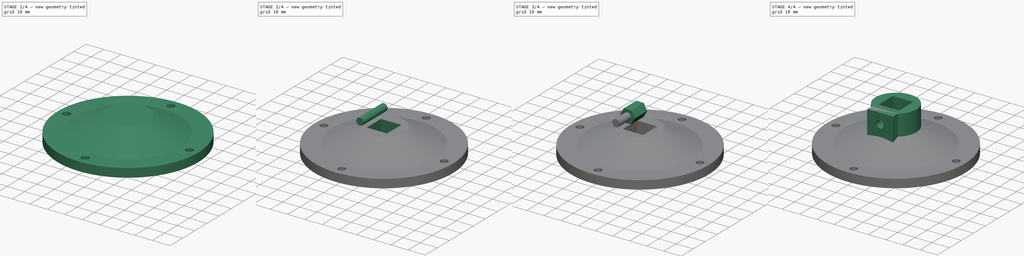
[diagram: build sequence overview — one tinted view per stage of 4, left to right]
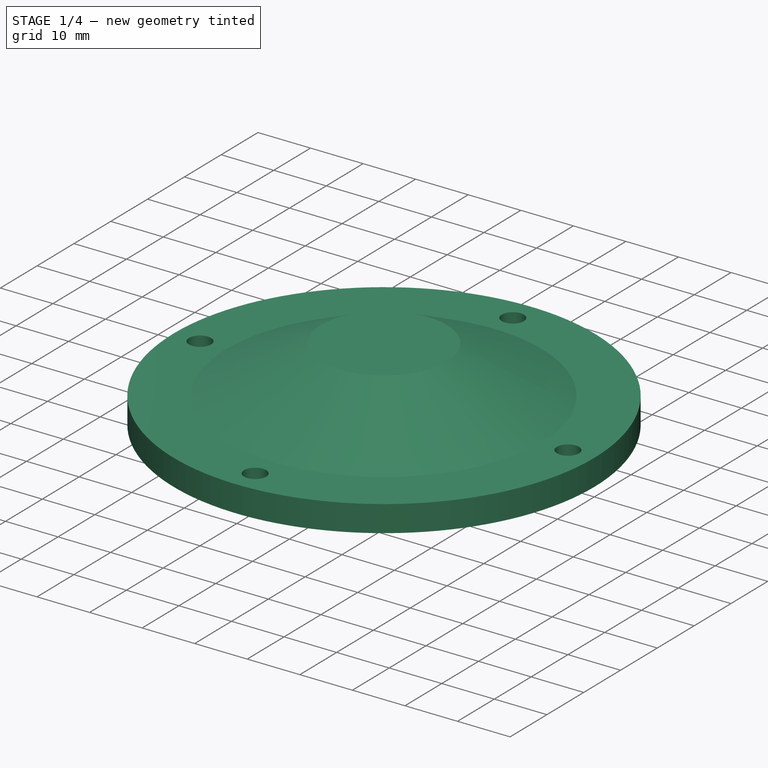
[diagram: stage 1 of 4 — iso view after this stage's code; geometry added in this stage tinted green]
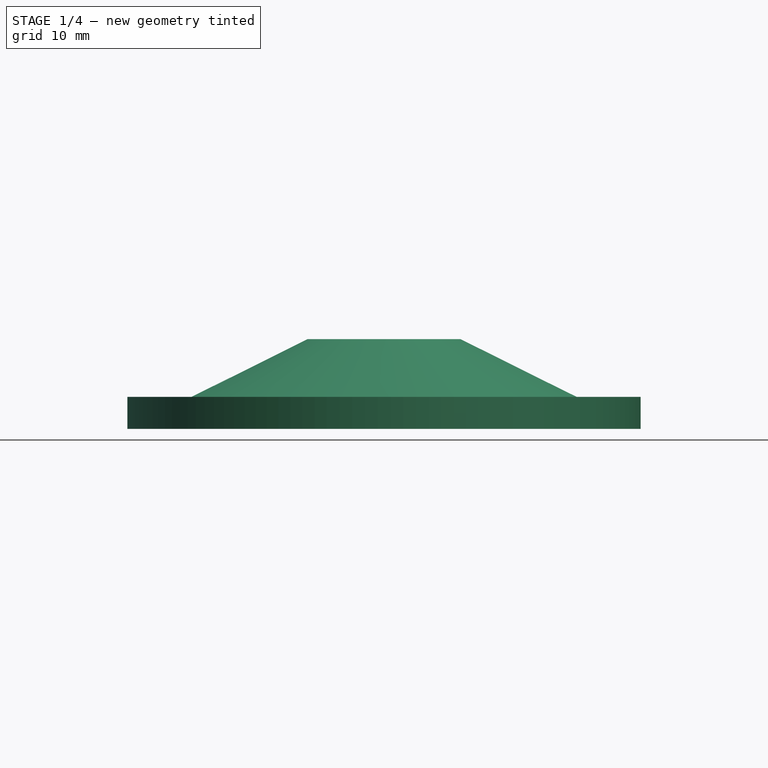
[diagram: stage 1 of 4 — front view after this stage's code; geometry added in this stage tinted green]
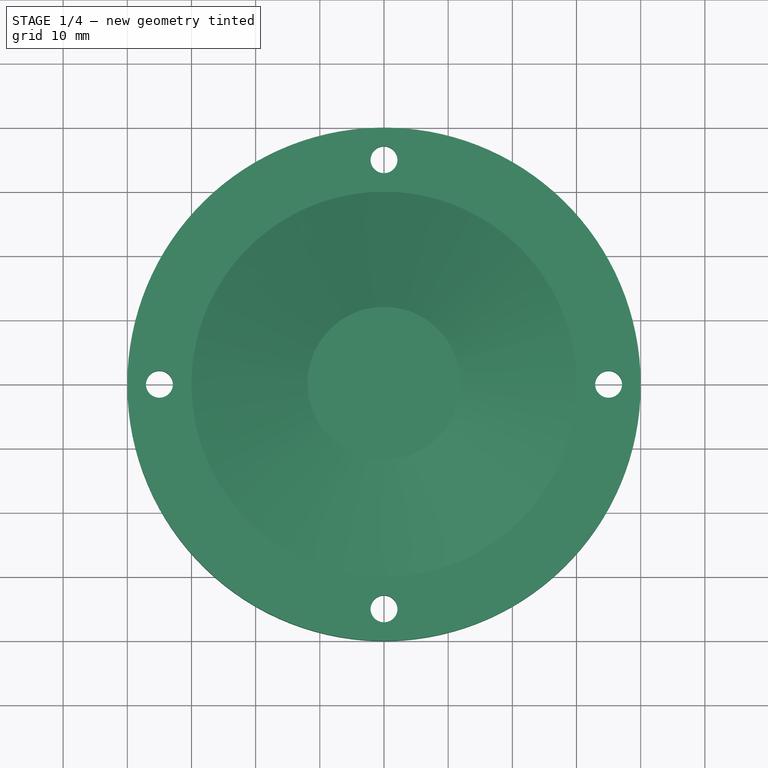
[diagram: stage 1 of 4 — top view after this stage's code; geometry added in this stage tinted green]
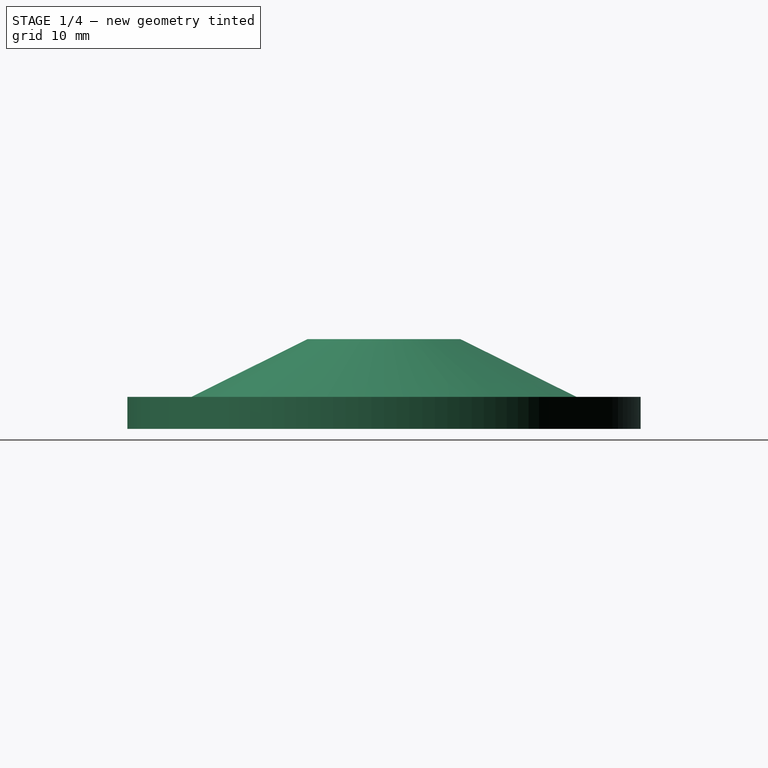
[diagram: stage 1 of 4 — right view after this stage's code; geometry added in this stage tinted green]
FCSTD DOCUMENT  (FreeCAD 0.15R4671 (Git))
Label: mobile
License: All rights reserved
LicenseURL: http://fr.wikipedia.org/wiki/<copyright redacted>
objects: Sketcher::SketchObject×5, PartDesign::Pad×5, Part::MultiFuse×3, Part::Cut×2, Part::Cone×1
note: 21 computed .brp shape members not serialized (recipe doc carries the construction recipe); baked Part::Feature solids carry a one-line shape summary decoded from their .brp

FEATURE [Part::Cone] Cone  label="Cône"
  Angle = 360
  Height = 9
  Placement = pos=(0,0,5) rot=(0,0,1;0rad)
  Radius1 = 30
  Radius2 = 11.9
FEATURE [Sketcher::SketchObject] Sketch001
  sketch-geometry (5):
    g0: Circle CenterX=0 CenterY=0 CenterZ=0 NormalX=0 NormalY=0 NormalZ=1 Radius=40
    g1: Circle CenterX=0 CenterY=35 CenterZ=0 NormalX=0 NormalY=0 NormalZ=1 Radius=2.1
    g2: Circle CenterX=-35 CenterY=0 CenterZ=0 NormalX=0 NormalY=0 NormalZ=1 Radius=2.1
    g3: Circle CenterX=35 CenterY=0 CenterZ=0 NormalX=0 NormalY=0 NormalZ=1 Radius=2.1
    g4: Circle CenterX=0 CenterY=-35 CenterZ=0 NormalX=0 NormalY=0 NormalZ=1 Radius=2.1
  constraints (14):
    c: Coincident(g0,g-1)
    c: Radius(g0) = 40
    c: PointOnObject(g1,g-2)
    c: PointOnObject(g2,g-1)
    c: PointOnObject(g3,g-1)
    c: PointOnObject(g4,g-2)
    c: Radius(g1) = 2.1
    c: Equal(g3,g1)
    c: Equal(g1,g4)
    c: Equal(g4,g2)
    c: Symmetric(g1,g4,g-1)
    c: Symmetric(g3,g2,g-1)
    c: DistanceX(g-1,g2) = -35
    c: DistanceY(g-1,g1) = 35
FEATURE [PartDesign::Pad] Pad001
  Length = 5
  Length2 = 100
  Sketch = -> Sketch001
  Type = 0
FEATURE [Part::MultiFuse] Fusion001
  Shapes = -> [Cone,Pad001]
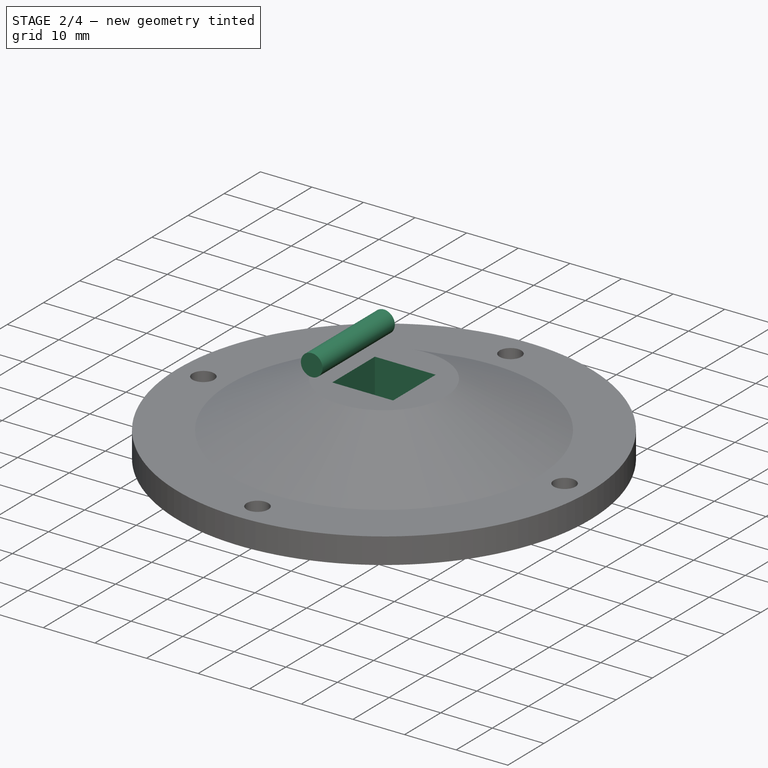
[diagram: stage 2 of 4 — iso view after this stage's code; geometry added in this stage tinted green]
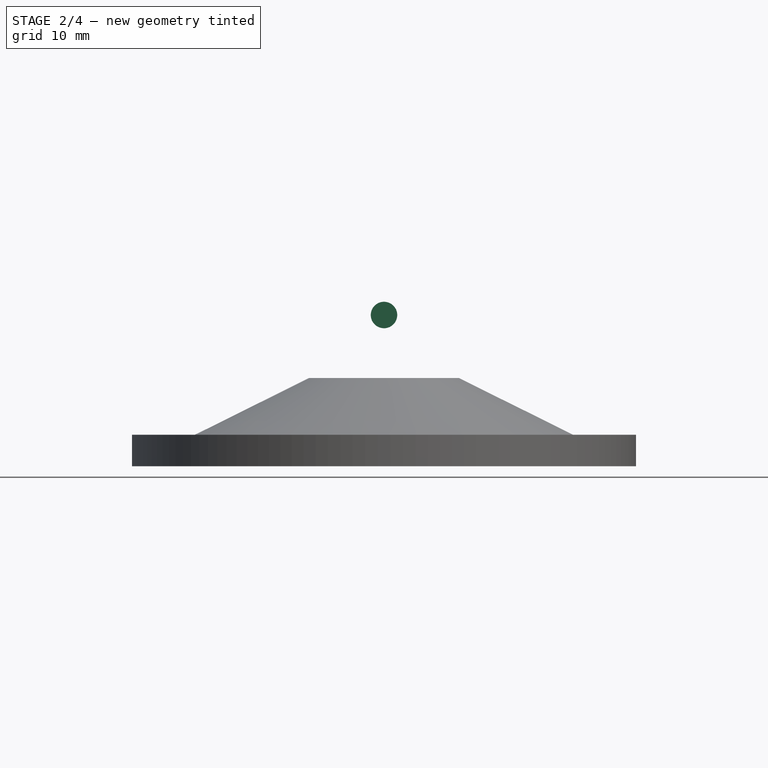
[diagram: stage 2 of 4 — front view after this stage's code; geometry added in this stage tinted green]
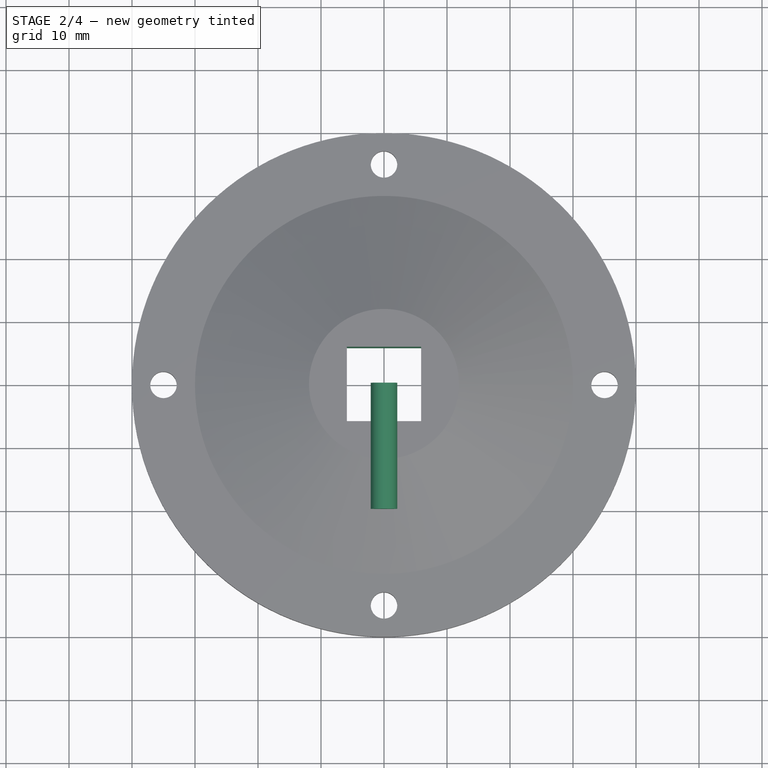
[diagram: stage 2 of 4 — top view after this stage's code; geometry added in this stage tinted green]
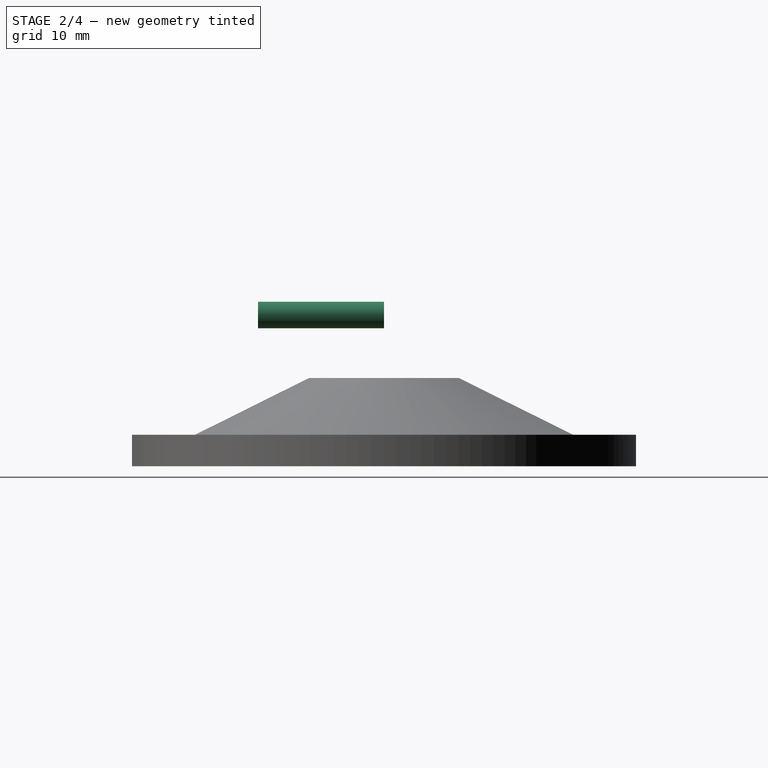
[diagram: stage 2 of 4 — right view after this stage's code; geometry added in this stage tinted green]
FEATURE [Sketcher::SketchObject] Sketch005
  Placement = pos=(0,0,0) rot=(1,0,0;1.5708rad)
  sketch-geometry (1):
    g0: Circle CenterX=0 CenterY=24 CenterZ=0 NormalX=0 NormalY=0 NormalZ=1 Radius=2.1
  constraints (3):
    c: PointOnObject(g0,g-2)
    c: Radius(g0) = 2.1
    c: DistanceY(g0) = 24
FEATURE [PartDesign::Pad] Pad005
  Length = 20
  Length2 = 100
  Placement = pos=(0,0,0) rot=(1,0,0;1.5708rad)
  Sketch = -> Sketch005
  Type = 0
FEATURE [Sketcher::SketchObject] Sketch006
  sketch-geometry (4):
    g0: LineSegment StartX=-5.9 StartY=5.9 StartZ=0 EndX=5.9 EndY=5.9 EndZ=0
    g1: LineSegment StartX=5.9 StartY=5.9 StartZ=0 EndX=5.9 EndY=-5.9 EndZ=0
    g2: LineSegment StartX=5.9 StartY=-5.9 StartZ=0 EndX=-5.9 EndY=-5.9 EndZ=0
    g3: LineSegment StartX=-5.9 StartY=-5.9 StartZ=0 EndX=-5.9 EndY=5.9 EndZ=0
  constraints (11):
    c: Coincident(g0,g1)
    c: Coincident(g1,g2)
    c: Coincident(g2,g3)
    c: Coincident(g3,g0)
    c: Horizontal(g0)
    c: Horizontal(g2)
    c: Vertical(g1)
    c: Vertical(g3)
    c: DistanceX(g0) = 11.8
    c: Equal(g1,g0)
    c: Symmetric(g0,g2,g-1)
FEATURE [PartDesign::Pad] Pad006
  Length = 30
  Length2 = 100
  Sketch = -> Sketch006
  Type = 0
FEATURE [Part::Cut] Cut001  label="vis"
  Base = -> Fusion001
  Tool = -> Pad006
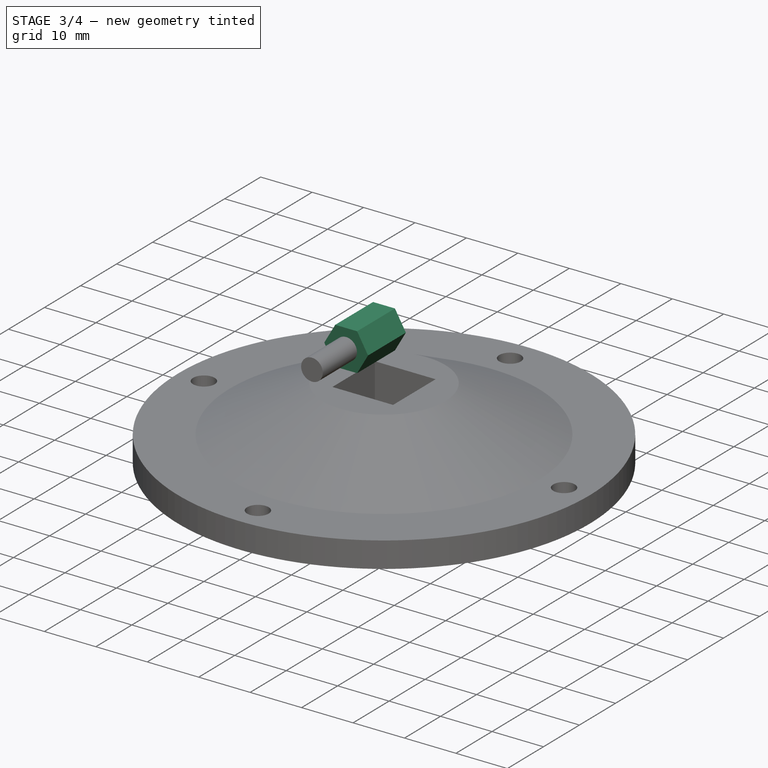
[diagram: stage 3 of 4 — iso view after this stage's code; geometry added in this stage tinted green]
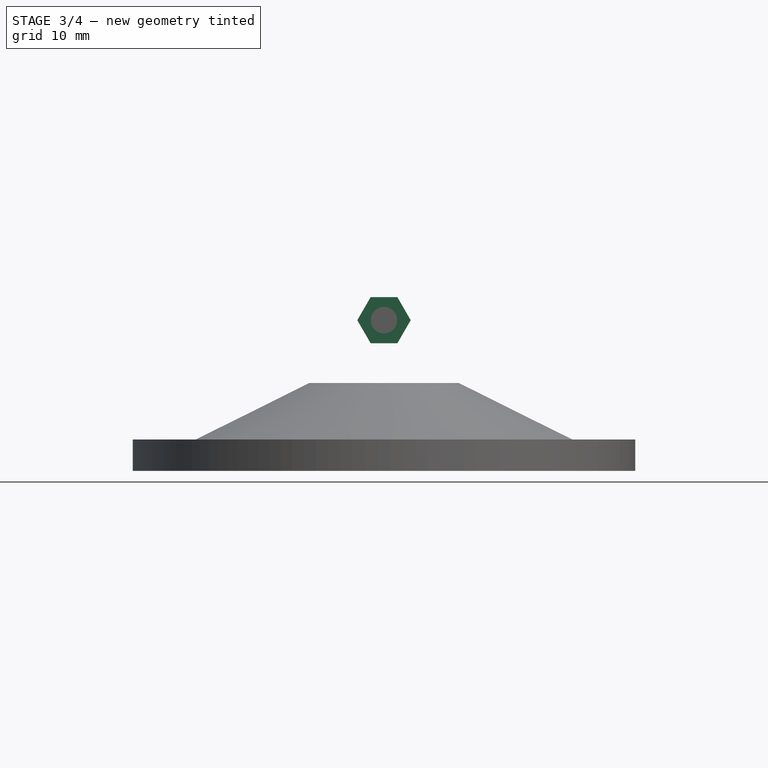
[diagram: stage 3 of 4 — front view after this stage's code; geometry added in this stage tinted green]
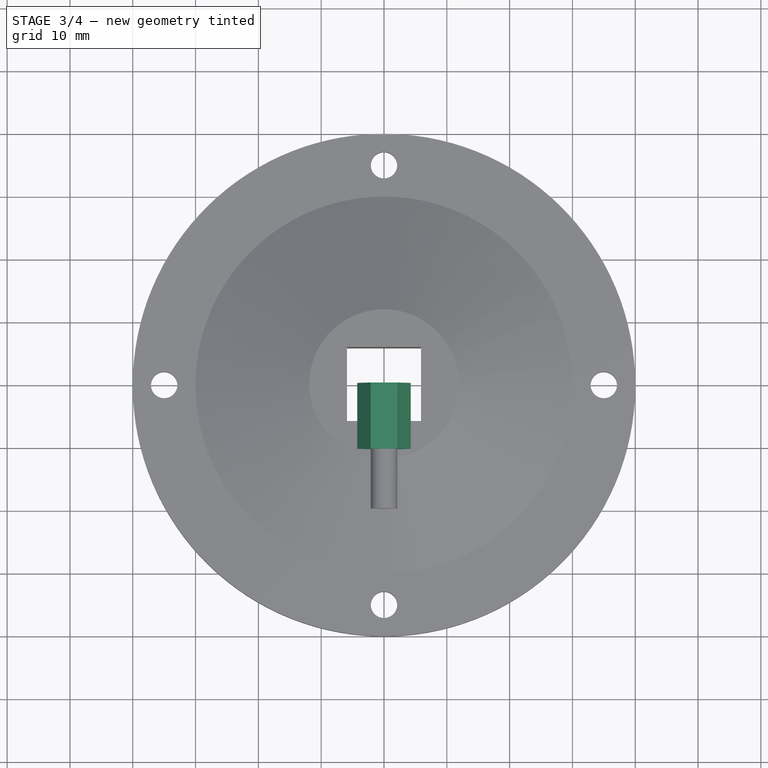
[diagram: stage 3 of 4 — top view after this stage's code; geometry added in this stage tinted green]
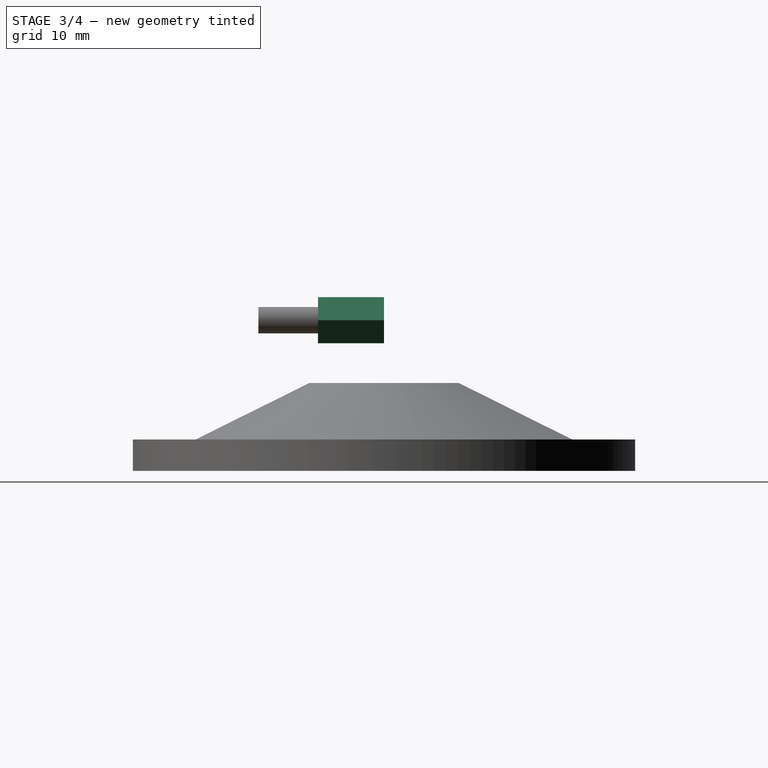
[diagram: stage 3 of 4 — right view after this stage's code; geometry added in this stage tinted green]
FEATURE [Sketcher::SketchObject] Sketch004
  Placement = pos=(0,0,0) rot=(1,0,0;1.5708rad)
  sketch-geometry (7):
    g0: LineSegment StartX=4.25 StartY=24 StartZ=0 EndX=2.125 EndY=27.6806 EndZ=0
    g1: LineSegment StartX=2.125 StartY=27.6806 StartZ=0 EndX=-2.125 EndY=27.6806 EndZ=0
    g2: LineSegment StartX=-2.125 StartY=27.6806 StartZ=0 EndX=-4.25 EndY=24 EndZ=0
    g3: LineSegment StartX=-4.25 StartY=24 StartZ=0 EndX=-2.125 EndY=20.3194 EndZ=0
    g4: LineSegment StartX=-2.125 StartY=20.3194 StartZ=0 EndX=2.125 EndY=20.3194 EndZ=0
    g5: LineSegment StartX=2.125 StartY=20.3194 StartZ=0 EndX=4.25 EndY=24 EndZ=0
    g6: Circle [constr] CenterX=0 CenterY=24 CenterZ=0 NormalX=0 NormalY=0 NormalZ=1 Radius=4.25
  constraints (18):
    c: Coincident(g0,g1)
    c: Coincident(g1,g2)
    c: Coincident(g2,g3)
    c: Coincident(g3,g4)
    c: Coincident(g4,g5)
    c: Coincident(g5,g0)
    c: Equal(g0, g1-g5) x5
    c: PointOnObject(g0,g6)
    c: PointOnObject(g1,g6)
    c: PointOnObject(g2,g6)
    c: PointOnObject(g3,g6)
    c: PointOnObject(g4,g6)
    c: PointOnObject(g5,g6)
    c: PointOnObject(g3,g-2)
    c: Horizontal(g1)
    c: Distance(g6,g0) = 4.25
    c: PointOnObject(g6,g-2)
    c: DistanceY(g-1,g6) = 24
FEATURE [PartDesign::Pad] Pad004
  Length = 10.5
  Length2 = 100
  Placement = pos=(0,0,0) rot=(1,0,0;1.5708rad)
  Sketch = -> Sketch004
  Type = 0
FEATURE [Part::MultiFuse] Fusion  label="screw_hole"
  Shapes = -> [Pad005,Pad004]
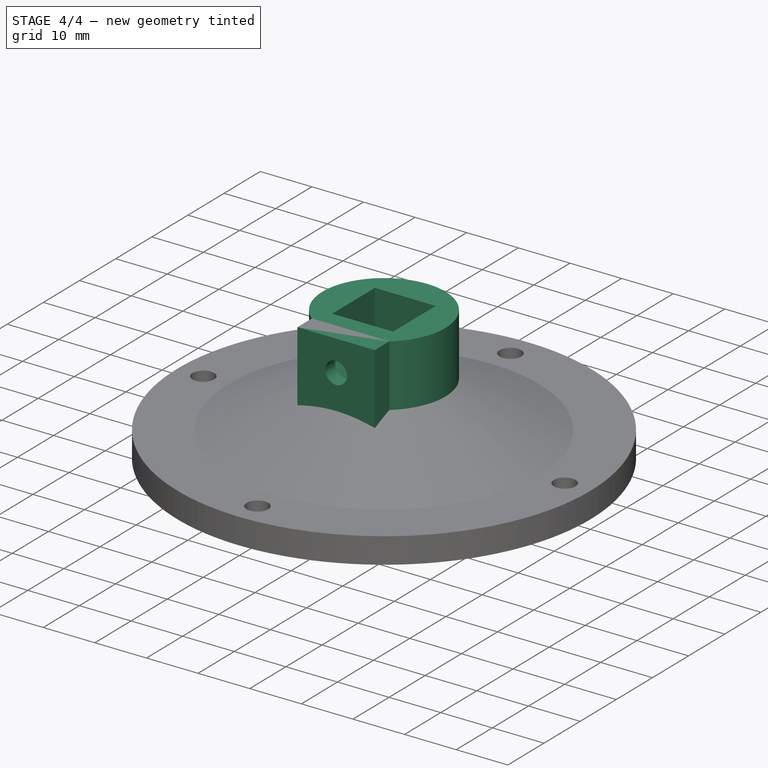
[diagram: stage 4 of 4 — iso view after this stage's code; geometry added in this stage tinted green]
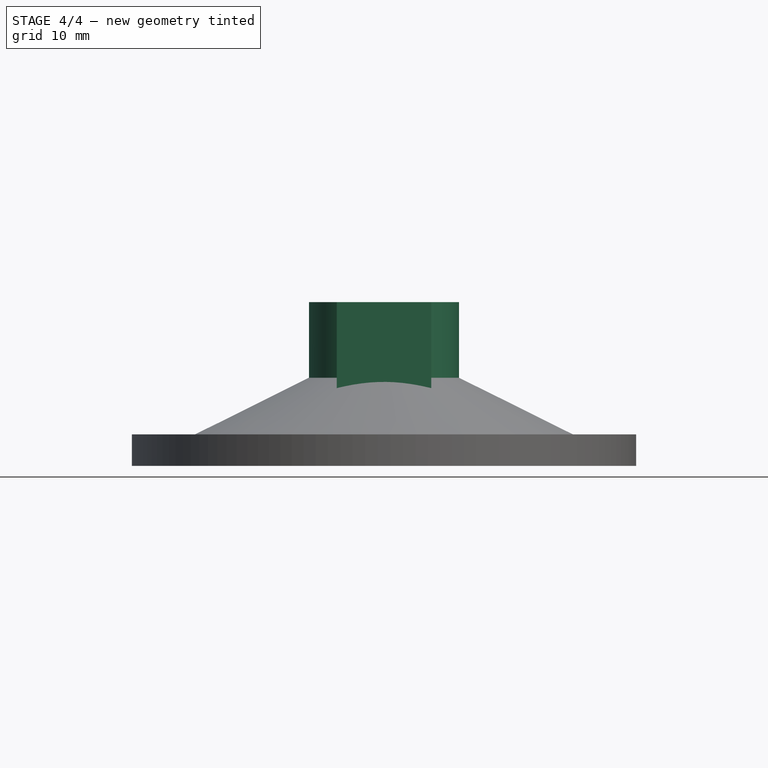
[diagram: stage 4 of 4 — front view after this stage's code; geometry added in this stage tinted green]
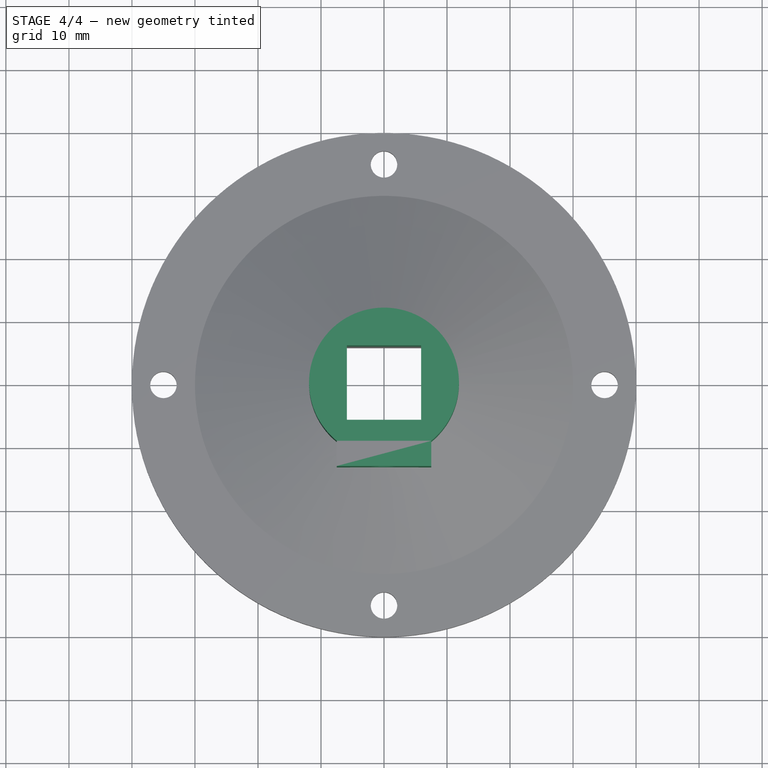
[diagram: stage 4 of 4 — top view after this stage's code; geometry added in this stage tinted green]
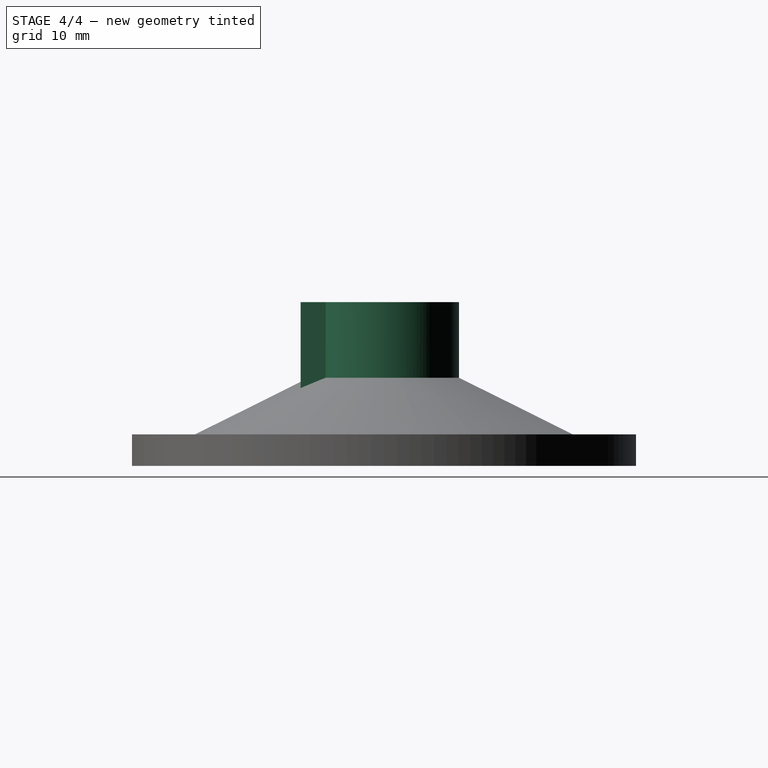
[diagram: stage 4 of 4 — right view after this stage's code; geometry added in this stage tinted green]
FEATURE [Sketcher::SketchObject] Sketch
  Placement = pos=(0,0,15) rot=(0,0,1;0rad)
  sketch-geometry (8):
    g0: LineSegment StartX=-5.9 StartY=5.9 StartZ=0 EndX=5.9 EndY=5.9 EndZ=0
    g1: LineSegment StartX=5.9 StartY=5.9 StartZ=0 EndX=5.9 EndY=-5.9 EndZ=0
    g2: LineSegment StartX=5.9 StartY=-5.9 StartZ=0 EndX=-5.9 EndY=-5.9 EndZ=0
    g3: LineSegment StartX=-5.9 StartY=-5.9 StartZ=0 EndX=-5.9 EndY=5.9 EndZ=0
    g4: ArcOfCircle CenterX=0 CenterY=0 CenterZ=0 NormalX=0 NormalY=0 NormalZ=1 Radius=11.9 StartAngle=5.39427 EndAngle=10.3137
    g5: LineSegment StartX=-7.5 StartY=-9.23905 StartZ=0 EndX=-7.5 EndY=-13.239 EndZ=0
    g6: LineSegment StartX=-7.5 StartY=-13.239 StartZ=0 EndX=7.5 EndY=-13.239 EndZ=0
    g7: LineSegment StartX=7.5 StartY=-13.239 StartZ=0 EndX=7.5 EndY=-9.23905 EndZ=0
  constraints (23):
    c: Coincident(g0,g1)
    c: Coincident(g1,g2)
    c: Coincident(g2,g3)
    c: Coincident(g3,g0)
    c: Horizontal(g0)
    c: Horizontal(g2)
    c: Vertical(g1)
    c: Vertical(g3)
    c: Equal(g1,g0)
    c: Symmetric(g0,g2,g-1)
    c: DistanceX(g0) = 11.8
    c: Coincident(g4,g-1)
    c: Distance(g-1,g4) = 11.9
    c: DistanceX(g4,g4) = -15
    c: Coincident(g4,g5)
    c: Coincident(g5,g6)
    c: Coincident(g6,g7)
    c: Coincident(g7,g4)
    c: Horizontal(g6)
    c: Equal(g7,g5)
    c: Vertical(g7)
    c: Vertical(g5)
    c: DistanceY(g7) = 4
FEATURE [PartDesign::Pad] Pad
  Length = 15
  Length2 = 100
  Placement = pos=(0,0,15) rot=(0,0,1;0rad)
  Sketch = -> Sketch
  Type = 0
FEATURE [Part::Cut] Cut  label="serrage"
  Base = -> Pad
  Placement = pos=(0,0,-4) rot=(0,0,1;0rad)
  Tool = -> Fusion
FEATURE [Part::MultiFuse] Fusion002  label="mobile"
  Shapes = -> [Cut,Cut001]
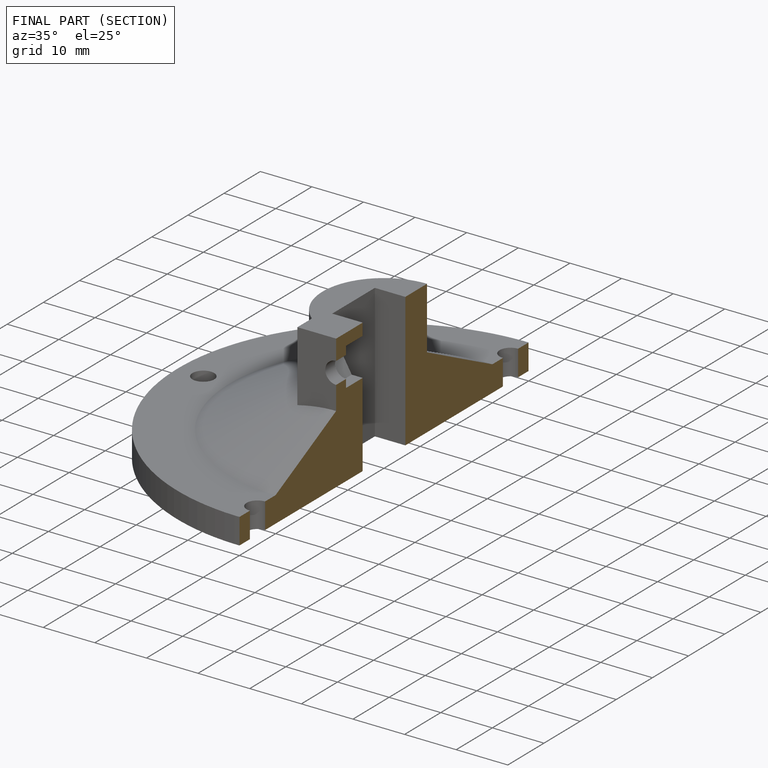
[diagram: finished part — half-section view (interior)]
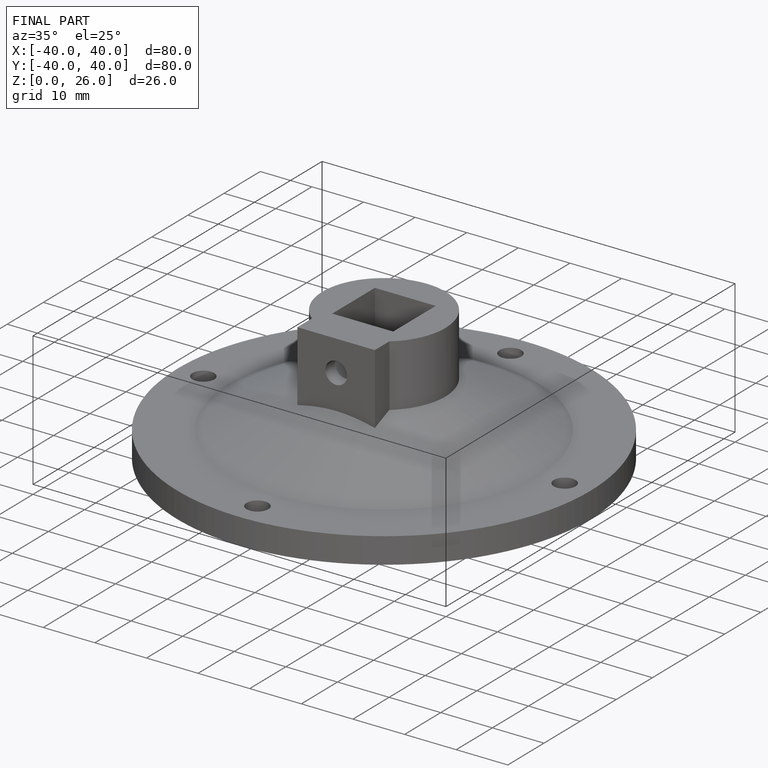
[diagram: finished part — iso view with bounding-box wireframe]
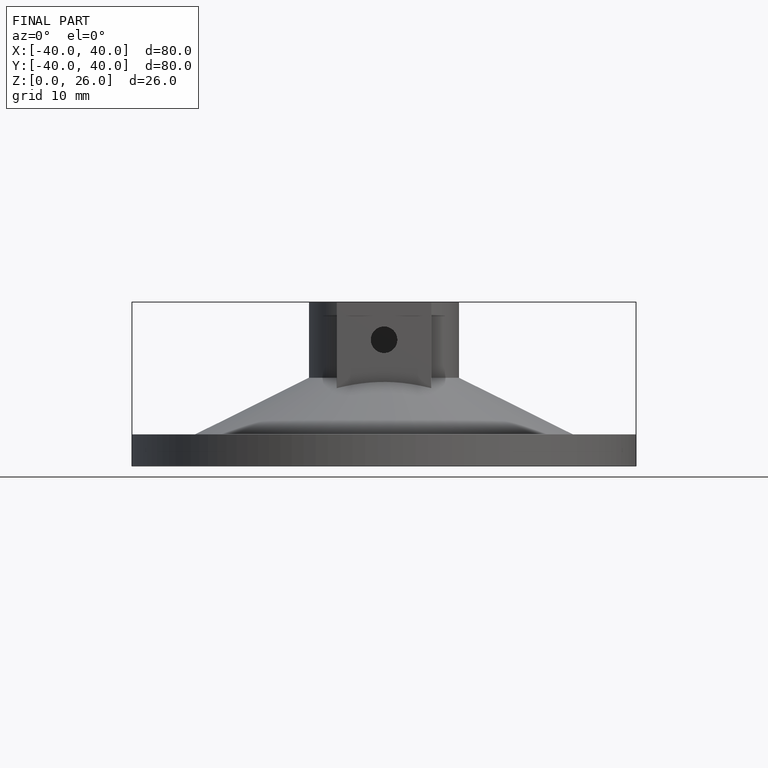
[diagram: finished part — front view with bounding-box wireframe]
